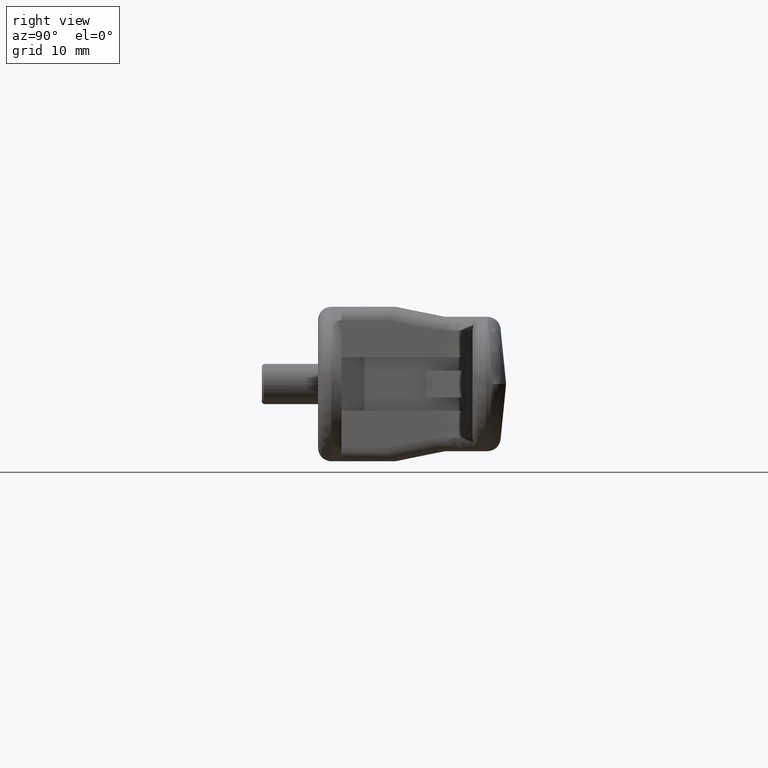
[diagram: clean part render]
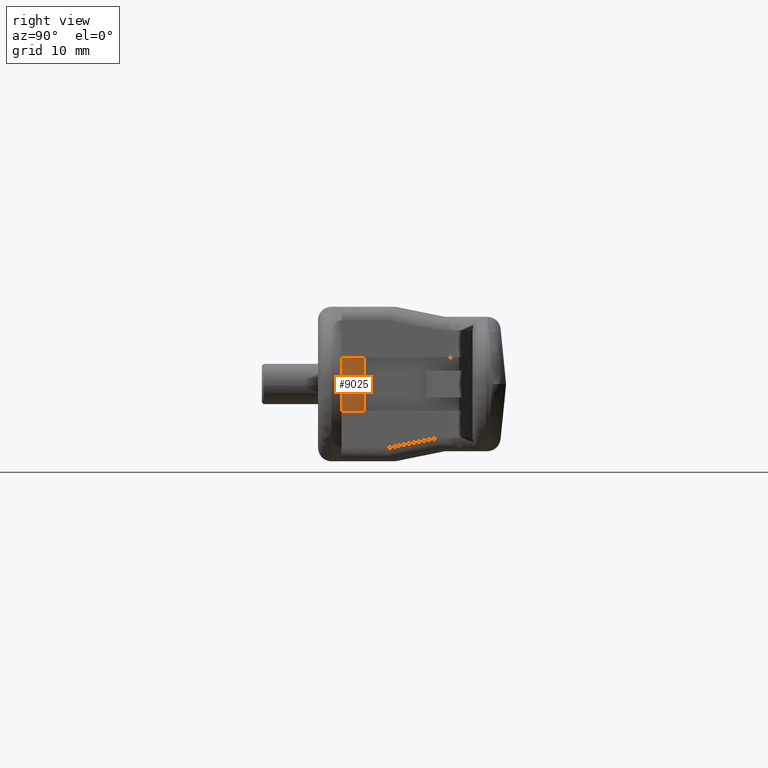
[diagram: same view with one face highlighted and labeled with its STEP entity id]
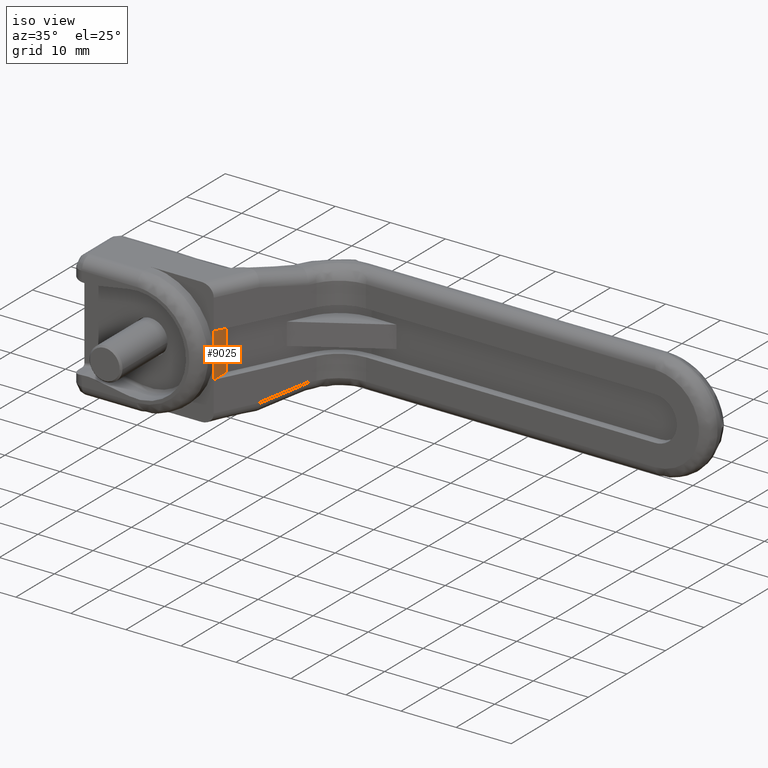
[diagram: same view with one face highlighted and labeled with its STEP entity id]
A machine part, right view. The second image highlights one B-rep face of the part: STEP entity #9025.
A second angle (iso view) of the same face is appended — the face is thin or edge-on in the first view.
In plain terms, the highlighted face is a freeform B-spline surface patch.
Its self-contained STEP definition (entity closure, byte-faithful):
#8812=CARTESIAN_POINT('',(6.880582273404641,-11.499950546220701,-4.000000453498800));
#8813=VERTEX_POINT('',#8812);
#8819=CARTESIAN_POINT('',(3.500000163796280,-11.499950546220701,-4.000000453498800));
#8820=VERTEX_POINT('',#8819);
#8821=CARTESIAN_POINT('',(3.500000163796280,-11.499950546220701,-4.000000453498800));
#8822=CARTESIAN_POINT('',(6.880582273404641,-11.499950546220701,-4.000000453498800));
#8823=QUASI_UNIFORM_CURVE('',1,(#8821,#8822),.UNSPECIFIED.,.F.,.U.);
#8824=EDGE_CURVE('',#8820,#8813,#8823,.T.);
#8884=CARTESIAN_POINT('',(3.500000163796280,-11.499950546220701,4.000000453498800));
#8885=VERTEX_POINT('',#8884);
#8891=CARTESIAN_POINT('',(6.880582273404641,-11.499950546220701,4.000000453498800));
#8892=VERTEX_POINT('',#8891);
#8893=CARTESIAN_POINT('',(3.500000163796280,-11.499950546220701,4.000000453498800));
#8894=CARTESIAN_POINT('',(6.880582273404641,-11.499950546220701,4.000000453498800));
#8895=QUASI_UNIFORM_CURVE('',1,(#8893,#8894),.UNSPECIFIED.,.F.,.U.);
#8896=EDGE_CURVE('',#8885,#8892,#8895,.T.);
#8979=CARTESIAN_POINT('',(6.880582273404641,-11.499950546220701,4.000000453498800));
#8980=CARTESIAN_POINT('',(6.880582273404641,-11.499950546220701,-4.000000453498800));
#8981=QUASI_UNIFORM_CURVE('',1,(#8979,#8980),.UNSPECIFIED.,.F.,.U.);
#8982=EDGE_CURVE('',#8892,#8813,#8981,.T.);
#8994=CARTESIAN_POINT('',(3.331140157442538,-11.499950546220701,-4.399600558396061));
#8995=CARTESIAN_POINT('',(3.331140157442538,-11.499950546220701,4.399600701447226));
#8996=CARTESIAN_POINT('',(7.049442430882180,-11.499950546220701,-4.399600558396061));
#8997=CARTESIAN_POINT('',(7.049442430882180,-11.499950546220701,4.399600701447226));
#8998=B_SPLINE_SURFACE_WITH_KNOTS('',1,1,((#8994,#8996),(#8995,#8997)),.UNSPECIFIED.,.F.,.F.,.U.,(2,2),(2,2),(0.0,8.799201259843287),(0.0,3.718302273439642),.UNSPECIFIED.);
#8999=ORIENTED_EDGE('',*,*,#8824,.T.);
#9000=ORIENTED_EDGE('',*,*,#8982,.F.);
#9001=ORIENTED_EDGE('',*,*,#8896,.F.);
#9002=CARTESIAN_POINT('',(3.500000163796280,-11.499950546220701,0.033911877361459));
#9003=VERTEX_POINT('',#9002);
#9004=CARTESIAN_POINT('',(3.500000163796280,-11.499950546220701,4.000000453498800));
#9005=CARTESIAN_POINT('',(3.500000163796280,-11.499950546220701,0.033911877361459));
#9006=QUASI_UNIFORM_CURVE('',1,(#9004,#9005),.UNSPECIFIED.,.F.,.U.);
#9007=EDGE_CURVE('',#8885,#9003,#9006,.T.);
#9008=ORIENTED_EDGE('',*,*,#9007,.T.);
#9009=CARTESIAN_POINT('',(3.500000163796280,-11.499950546220701,-0.033911350343474));
#9010=VERTEX_POINT('',#9009);
#9011=CARTESIAN_POINT('',(3.500000163796280,-11.499950546220701,0.033911877361459));
#9012=CARTESIAN_POINT('',(3.500000163799033,-11.500017212838520,0.011304200148279));
#9013=CARTESIAN_POINT('',(3.500000163799033,-11.500017212838520,-0.011303673130268));
#9014=CARTESIAN_POINT('',(3.500000163796280,-11.499950546220701,-0.033911350343474));
#9015=QUASI_UNIFORM_CURVE('',3,(#9011,#9012,#9013,#9014),.UNSPECIFIED.,.F.,.U.);
#9016=EDGE_CURVE('',#9003,#9010,#9015,.T.);
#9017=ORIENTED_EDGE('',*,*,#9016,.T.);
#9018=CARTESIAN_POINT('',(3.500000163796280,-11.499950546220701,-0.033911350343474));
#9019=CARTESIAN_POINT('',(3.500000163796280,-11.499950546220701,-4.000000453498800));
#9020=QUASI_UNIFORM_CURVE('',1,(#9018,#9019),.UNSPECIFIED.,.F.,.U.);
#9021=EDGE_CURVE('',#9010,#8820,#9020,.T.);
#9022=ORIENTED_EDGE('',*,*,#9021,.T.);
#9023=EDGE_LOOP('',(#8999,#9000,#9001,#9008,#9017,#9022));
#9024=FACE_OUTER_BOUND('',#9023,.T.);
#9025=ADVANCED_FACE('',(#9024),#8998,.F.);